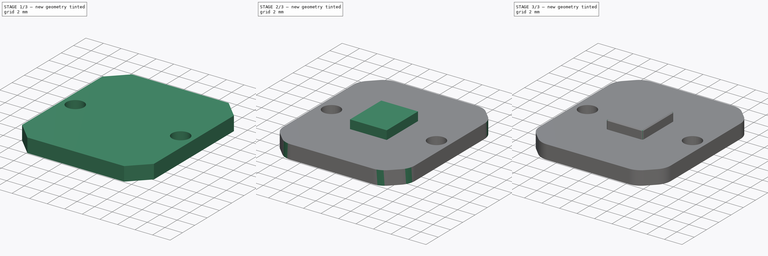
[diagram: build sequence overview — one tinted view per stage of 3, left to right]
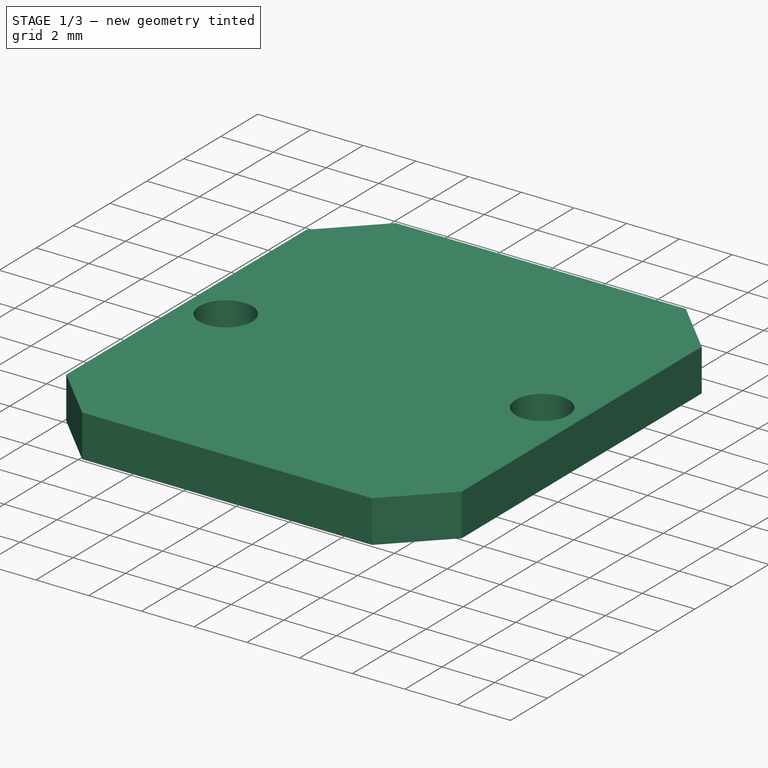
[diagram: stage 1 of 3 — iso view after this stage's code; geometry added in this stage tinted green]
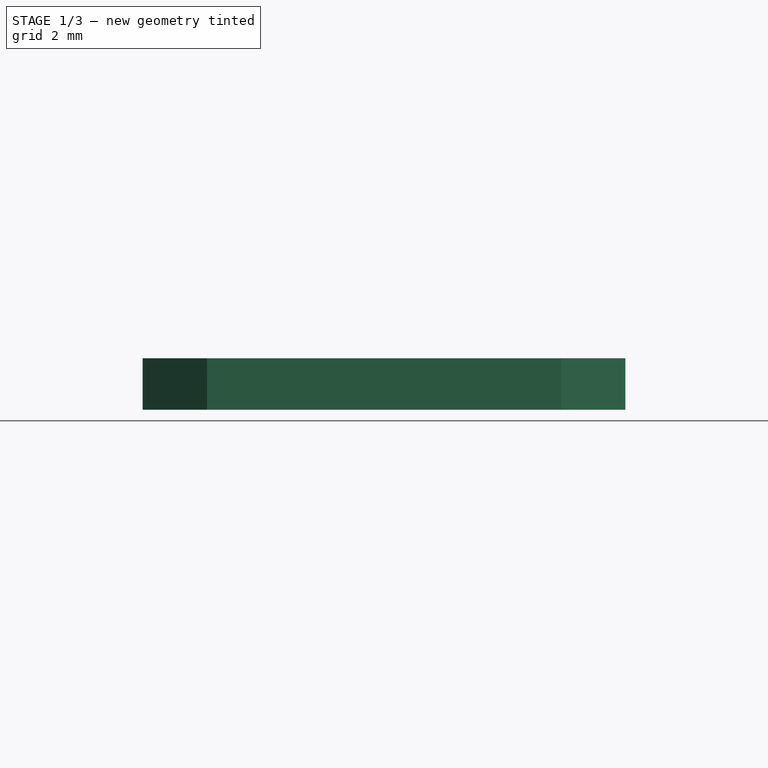
[diagram: stage 1 of 3 — front view after this stage's code; geometry added in this stage tinted green]
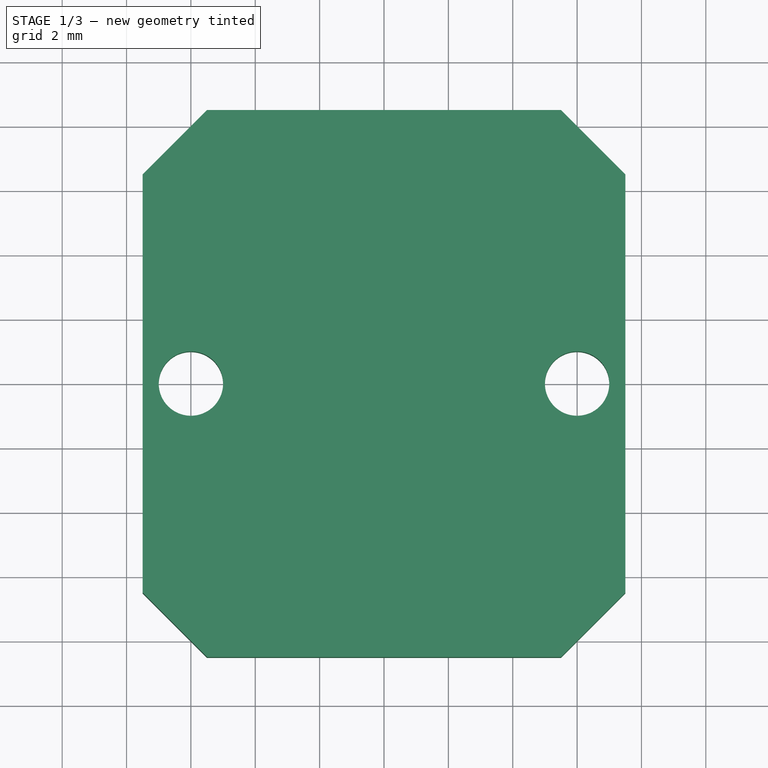
[diagram: stage 1 of 3 — top view after this stage's code; geometry added in this stage tinted green]
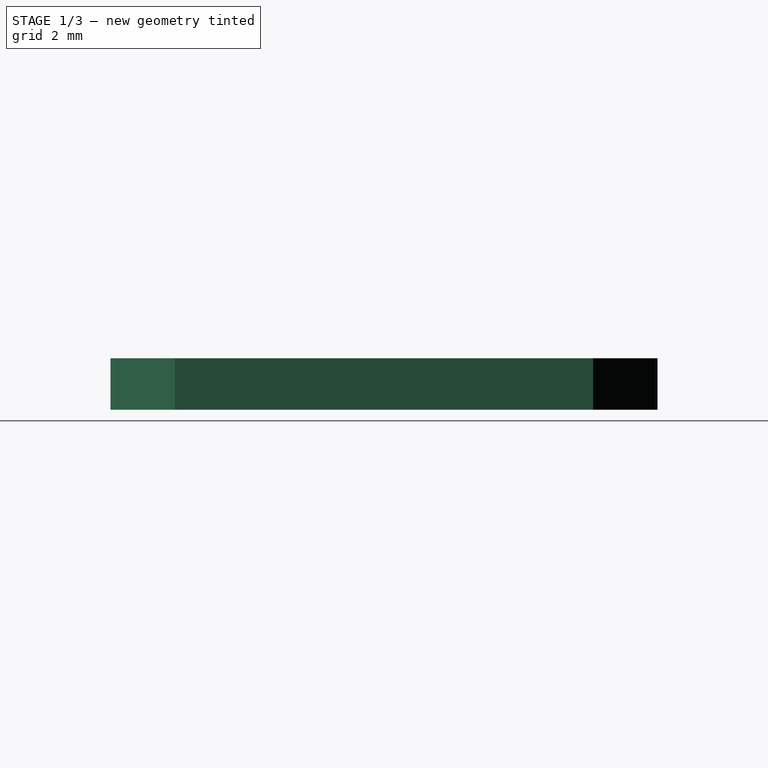
[diagram: stage 1 of 3 — right view after this stage's code; geometry added in this stage tinted green]
FCSTD DOCUMENT  (FreeCAD 1.1R41365 (Git))
Label: MT6835
License: All rights reserved
LicenseURL: https://en.wikipedia.org/wiki/All_rights_reserved
objects: Sketcher::SketchObject×2, PartDesign::Pad×2, PartDesign::Chamfer×2, PartDesign::Fillet×2, App::Point×1, PartDesign::Body×1
note: 23 computed .brp shape members not serialized (recipe doc carries the construction recipe); baked Part::Feature solids carry a one-line shape summary decoded from their .brp

FEATURE [App::Point] Origin001
  Role = Origin
FEATURE [Sketcher::SketchObject] Sketch
  ArcFitTolerance = 1e-06
  AttachmentSupport = -> [Origin]
  ExternalTypes = [0]
  FullyConstrained = true
  MakeInternals = false
  MapMode = 5
  sketch-geometry (7):
    g0: LineSegment StartX=-7.5 StartY=-8.5 StartZ=0 EndX=7.5 EndY=-8.5 EndZ=0
    g1: LineSegment StartX=7.5 StartY=-8.5 StartZ=0 EndX=7.5 EndY=8.5 EndZ=0
    g2: LineSegment StartX=7.5 StartY=8.5 StartZ=0 EndX=-7.5 EndY=8.5 EndZ=0
    g3: LineSegment StartX=-7.5 StartY=8.5 StartZ=0 EndX=-7.5 EndY=-8.5 EndZ=0
    g4: GeomPoint [constr] X=0 Y=0 Z=0
    g5: Circle CenterX=-6 CenterY=0 CenterZ=0 NormalX=0 NormalY=0 NormalZ=1 AngleXU=0 Radius=1
    g6: Circle CenterX=6 CenterY=0 CenterZ=0 NormalX=0 NormalY=0 NormalZ=1 AngleXU=0 Radius=1
  constraints (18):
    c: Coincident(g0,g1)
    c: Coincident(g1,g2)
    c: Coincident(g2,g3)
    c: Coincident(g3,g0)
    c: Horizontal(g0)
    c: Horizontal(g2)
    c: Vertical(g1)
    c: Vertical(g3)
    c: Symmetric(g2,g0,g4)
    c: Coincident(g4,g-1)
    c: DistanceY(g1,g1) = 17
    c: DistanceX(g2,g2) = 15
    c: PointOnObject(g5,g-1)
    c: PointOnObject(g6,g-1)
    c: Equal(g5,g6)
    c: Diameter(g6) = 2
    c: DistanceX(g5,g-1) = 6
    c: DistanceX(g-1,g6) = 6
FEATURE [PartDesign::Pad] Pad
  Direction = (0,0,1)
  Length = 1.6
  Length2 = 10
  Profile = -> Sketch
  ReferenceAxis = -> Sketch [N_Axis]
  Refine = true
  Reversed = true
  Suppressed = false
  Type = 0
FEATURE [PartDesign::Chamfer] Chamfer
  Angle = 45
  Base = -> Pad [Edge2,Edge1,Edge5,Edge8]
  BaseFeature = -> Pad
  ChamferType = 0
  FlipDirection = false
  Refine = true
  Size = 2
  Size2 = 1
  SupportTransform = false
  Suppressed = false
  UseAllEdges = false
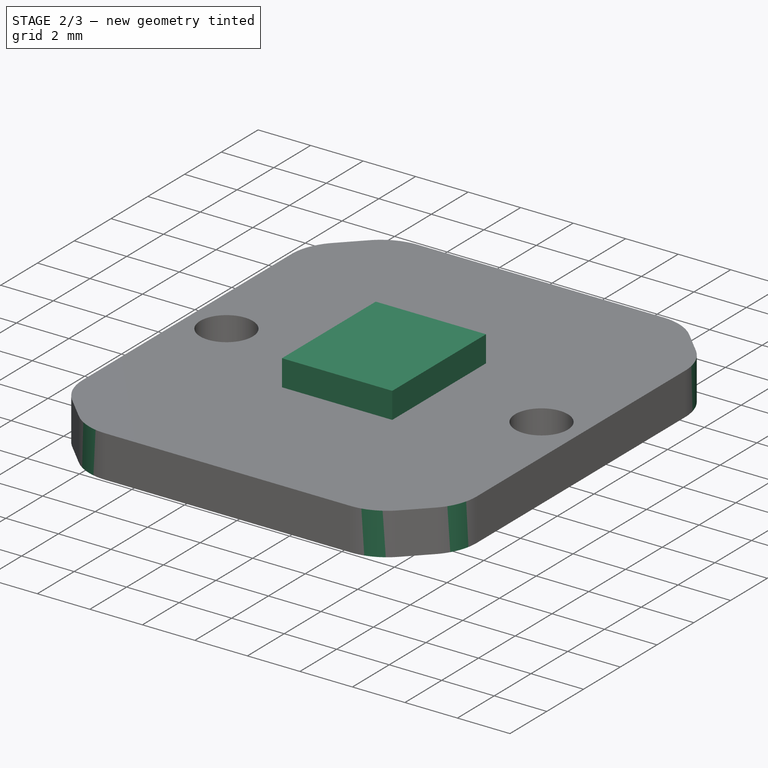
[diagram: stage 2 of 3 — iso view after this stage's code; geometry added in this stage tinted green]
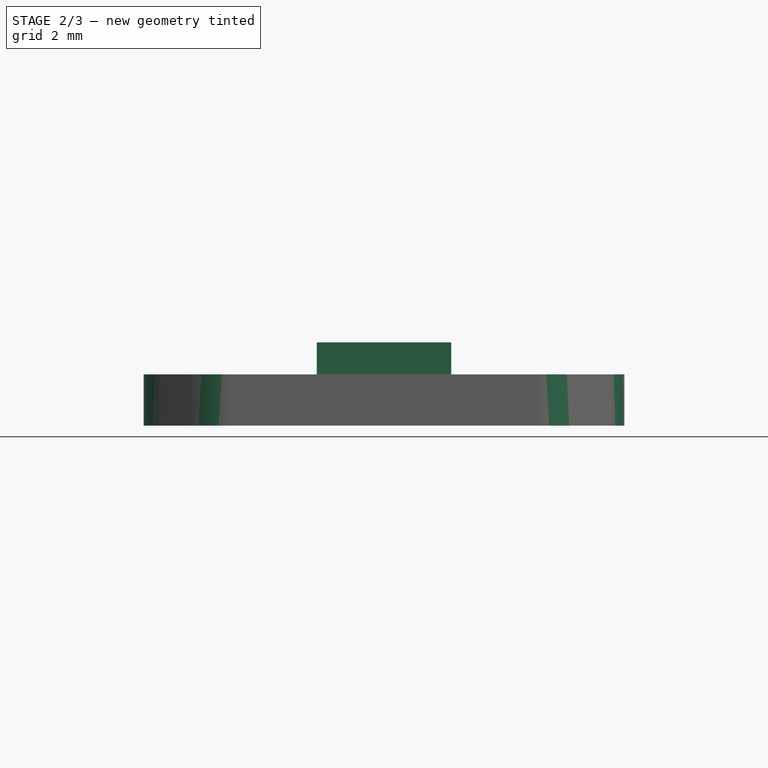
[diagram: stage 2 of 3 — front view after this stage's code; geometry added in this stage tinted green]
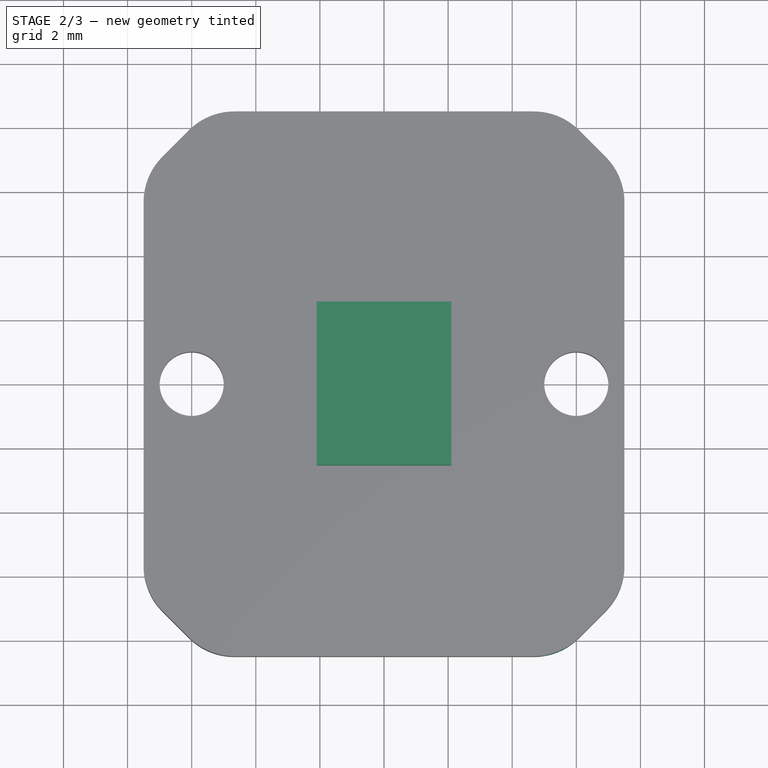
[diagram: stage 2 of 3 — top view after this stage's code; geometry added in this stage tinted green]
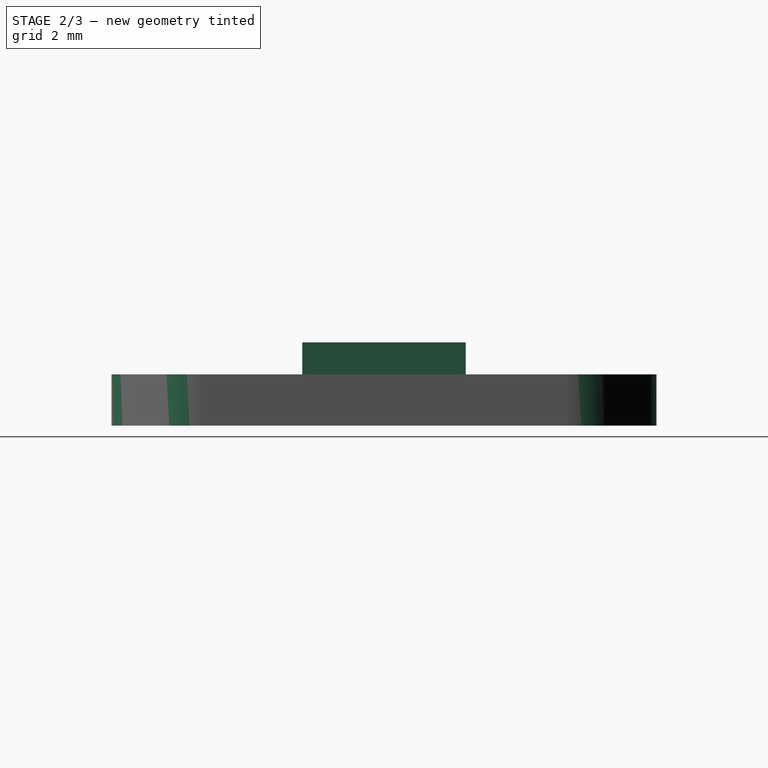
[diagram: stage 2 of 3 — right view after this stage's code; geometry added in this stage tinted green]
FEATURE [PartDesign::Fillet] Fillet
  Base = -> Chamfer [Edge2,Edge14,Edge3,Vertex14,Edge16,Edge26,Edge28,Edge27,Edge25]
  BaseFeature = -> Chamfer
  Radius = 2
  Refine = true
  SupportTransform = false
  Suppressed = false
  UseAllEdges = false
FEATURE [Sketcher::SketchObject] Sketch001
  ArcFitTolerance = 1e-06
  AttachmentSupport = -> [Fillet]
  ExternalTypes = [0]
  FullyConstrained = true
  MakeInternals = false
  MapMode = 5
  sketch-geometry (5):
    g0: LineSegment StartX=-2.1 StartY=-2.55 StartZ=0 EndX=2.1 EndY=-2.55 EndZ=0
    g1: LineSegment StartX=2.1 StartY=-2.55 StartZ=0 EndX=2.1 EndY=2.55 EndZ=0
    g2: LineSegment StartX=2.1 StartY=2.55 StartZ=0 EndX=-2.1 EndY=2.55 EndZ=0
    g3: LineSegment StartX=-2.1 StartY=2.55 StartZ=0 EndX=-2.1 EndY=-2.55 EndZ=0
    g4: GeomPoint [constr] X=0 Y=0 Z=0
  constraints (12):
    c: Coincident(g0,g1)
    c: Coincident(g1,g2)
    c: Coincident(g2,g3)
    c: Coincident(g3,g0)
    c: Horizontal(g0)
    c: Horizontal(g2)
    c: Vertical(g1)
    c: Vertical(g3)
    c: Symmetric(g2,g0,g4)
    c: Coincident(g4,g-1)
    c: DistanceY(g1,g1) = 5.1
    c: DistanceX(g2,g2) = 4.2
FEATURE [PartDesign::Pad] Pad001
  BaseFeature = -> Fillet
  Direction = (0,0,1)
  Length = 1
  Length2 = 10
  Profile = -> Sketch001
  ReferenceAxis = -> Sketch001 [N_Axis]
  Refine = true
  Suppressed = false
  Type = 0
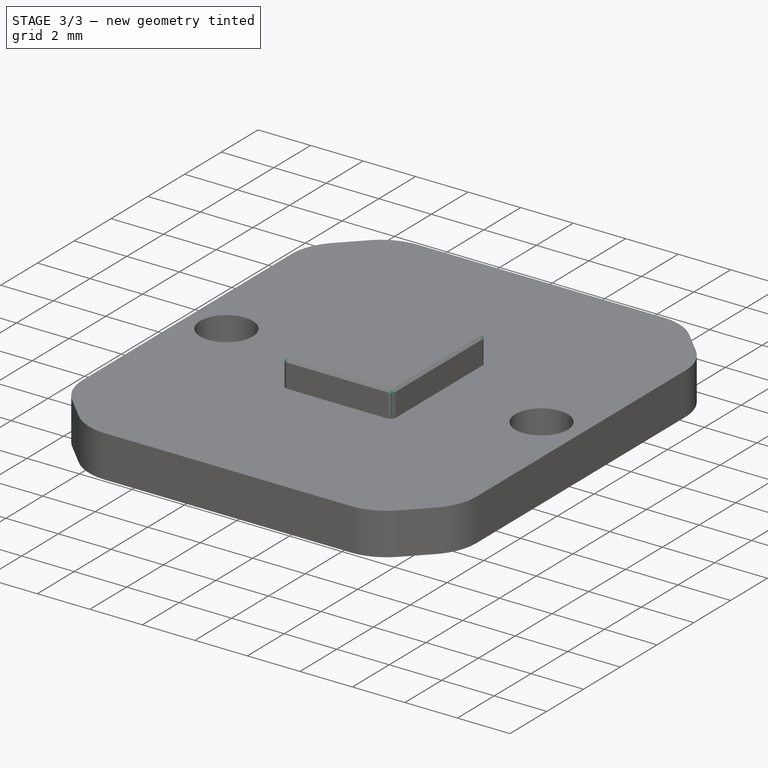
[diagram: stage 3 of 3 — iso view after this stage's code; geometry added in this stage tinted green]
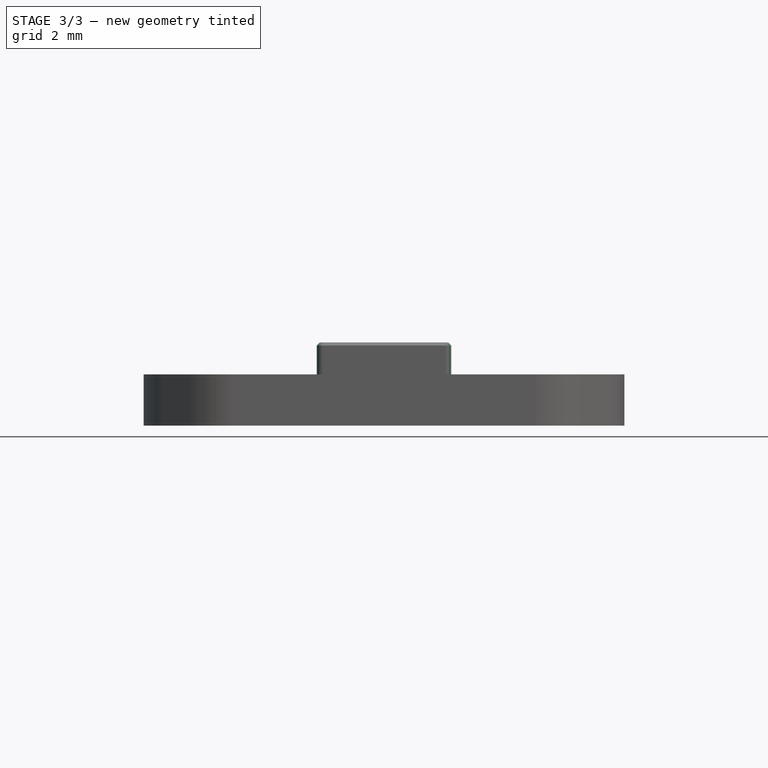
[diagram: stage 3 of 3 — front view after this stage's code; geometry added in this stage tinted green]
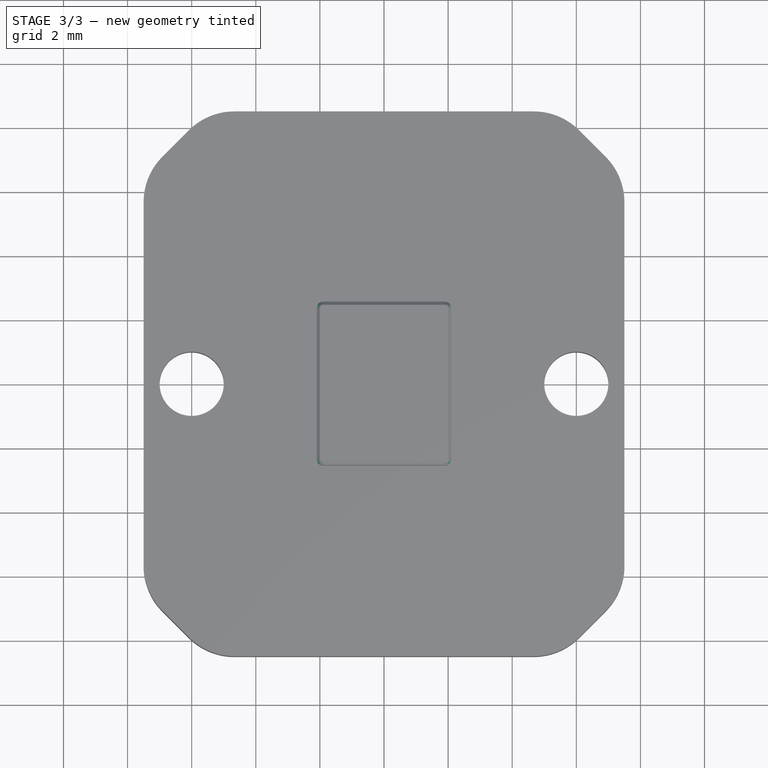
[diagram: stage 3 of 3 — top view after this stage's code; geometry added in this stage tinted green]
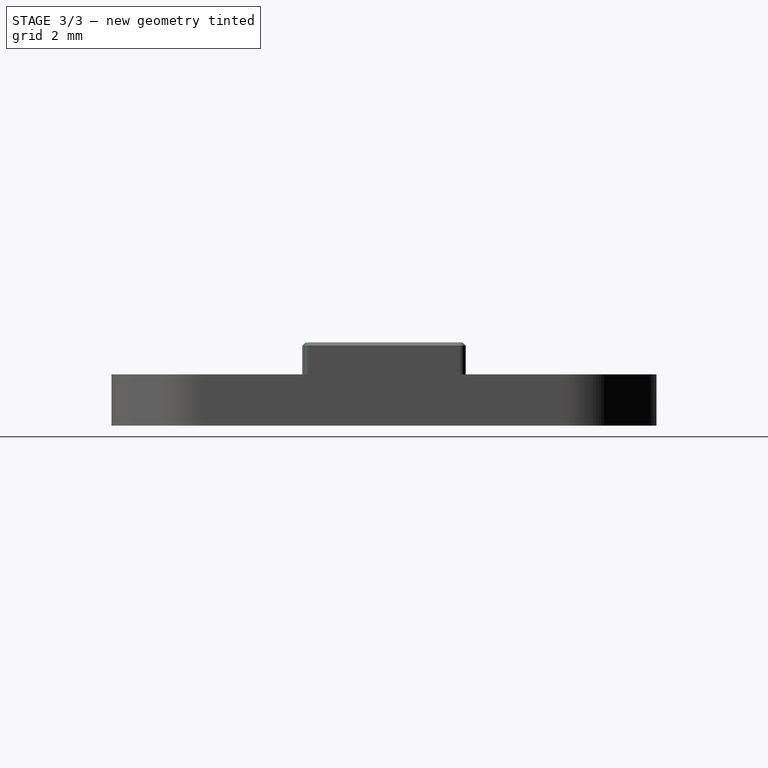
[diagram: stage 3 of 3 — right view after this stage's code; geometry added in this stage tinted green]
FEATURE [PartDesign::Fillet] Fillet001
  Base = -> Pad001 [Edge61,Edge63,Edge58,Edge59]
  BaseFeature = -> Pad001
  Radius = 0.2
  Refine = true
  SupportTransform = false
  Suppressed = false
  UseAllEdges = false
FEATURE [PartDesign::Chamfer] Chamfer001
  Angle = 45
  Base = -> Fillet001 [Edge42]
  BaseFeature = -> Fillet001
  ChamferType = 0
  FlipDirection = false
  Refine = true
  Size = 0.1
  Size2 = 1
  SupportTransform = false
  Suppressed = false
  UseAllEdges = false
FEATURE [PartDesign::Body] Body  label="MT6835"
  AllowCompound = false
  Group = -> [Sketch,Pad,Chamfer,Fillet,Sketch001,Pad001,Fillet001,Chamfer001]
  Origin = -> Origin
  Tip = -> Chamfer001
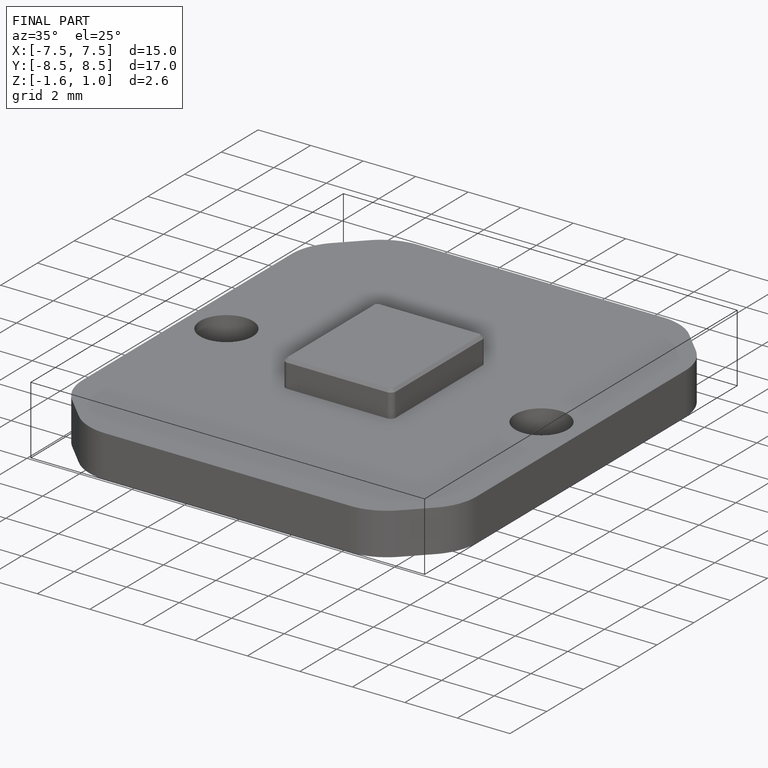
[diagram: finished part — iso view with bounding-box wireframe]
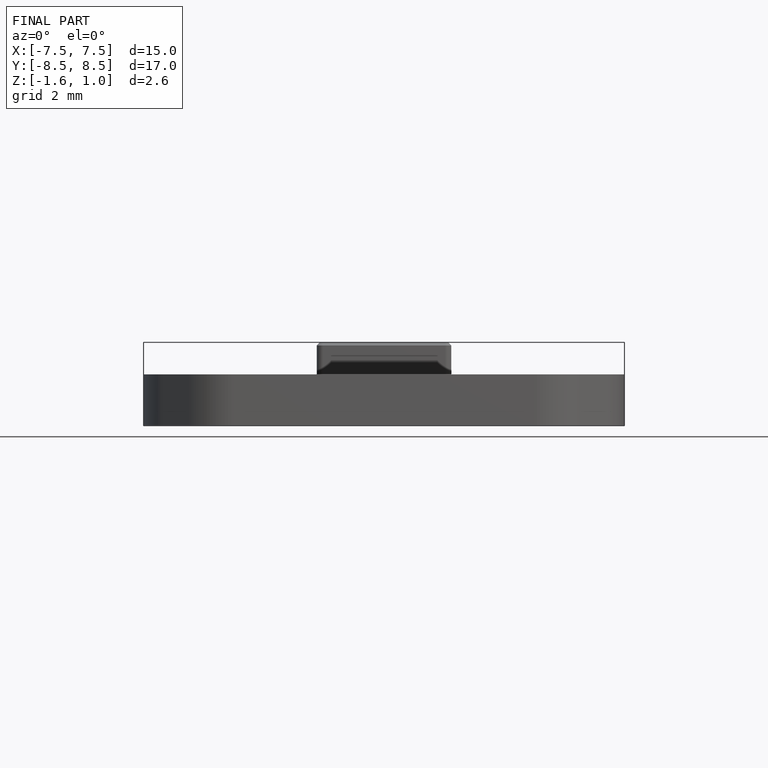
[diagram: finished part — front view with bounding-box wireframe]
